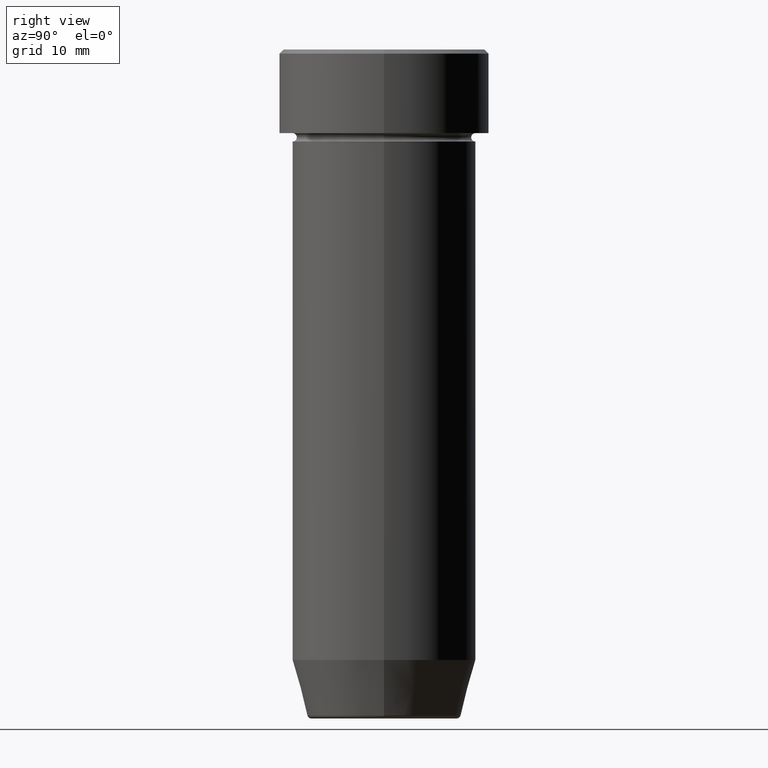
[diagram: clean part render]
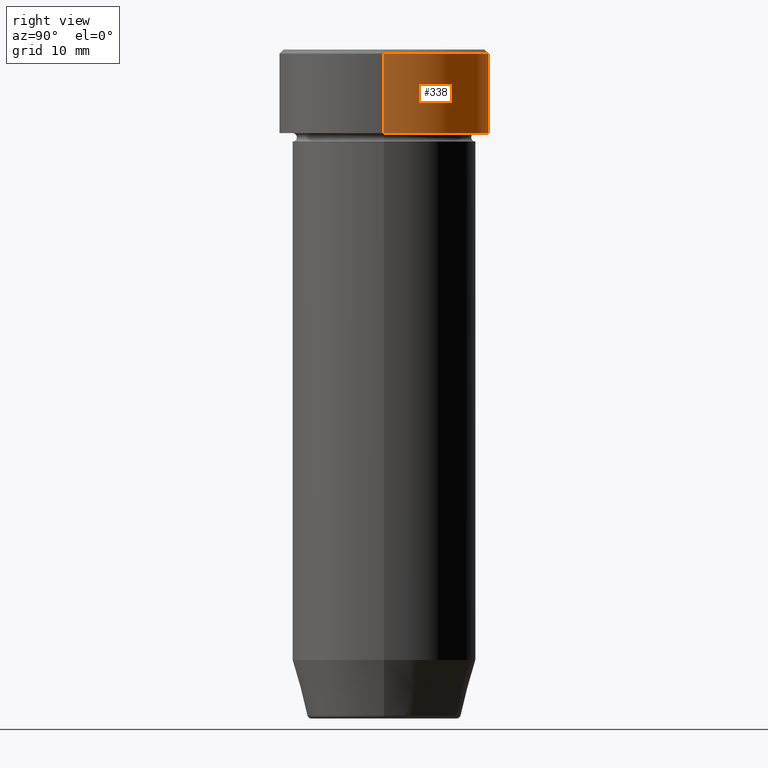
[diagram: same view with one face highlighted and labeled with its STEP entity id]
A machine part, right view. The second image highlights one B-rep face of the part: STEP entity #338.
In plain terms, the highlighted cylindrical surface (partial cylindrical patch) has radius 12.5 mm, axis along (-0, -0, 1).
Its self-contained STEP definition (entity closure, byte-faithful):
#4 = VERTEX_POINT ( 'NONE', #120 ) ;
#15 = CARTESIAN_POINT ( 'NONE',  ( 0.000000000000000000, 0.000000000000000000, -10.00000000000000000 ) ) ;
#18 = FACE_OUTER_BOUND ( 'NONE', #419, .T. ) ;
#53 = LINE ( 'NONE', #129, #532 ) ;
#89 = DIRECTION ( 'NONE',  ( -0.000000000000000000, -0.000000000000000000, 1.000000000000000000 ) ) ;
#100 = LINE ( 'NONE', #479, #133 ) ;
#120 = CARTESIAN_POINT ( 'NONE',  ( 12.50000000000000000, 0.000000000000000000, -0.4999999999999988343 ) ) ;
#121 = CARTESIAN_POINT ( 'NONE',  ( 12.50000000000000000, 0.000000000000000000, -10.00000000000000000 ) ) ;
#128 = VERTEX_POINT ( 'NONE', #135 ) ;
#129 = CARTESIAN_POINT ( 'NONE',  ( -12.50000000000000000, 1.530808498934191521E-15, 0.000000000000000000 ) ) ;
#133 = VECTOR ( 'NONE', #227, 1000.000000000000000 ) ;
#134 = ORIENTED_EDGE ( 'NONE', *, *, #137, .T. ) ;
#135 = CARTESIAN_POINT ( 'NONE',  ( -12.50000000000000000, 1.530808498934191521E-15, -0.4999999999999988343 ) ) ;
#137 = EDGE_CURVE ( 'NONE', #445, #426, #177, .T. ) ;
#145 = CARTESIAN_POINT ( 'NONE',  ( 0.000000000000000000, 0.000000000000000000, -0.4999999999999988343 ) ) ;
#148 = CARTESIAN_POINT ( 'NONE',  ( -12.50000000000000000, 1.530808498934191521E-15, -10.00000000000000000 ) ) ;
#172 = EDGE_CURVE ( 'NONE', #128, #4, #208, .T. ) ;
#177 = CIRCLE ( 'NONE', #252, 12.50000000000000000 ) ;
#178 = EDGE_CURVE ( 'NONE', #445, #4, #100, .T. ) ;
#198 = CARTESIAN_POINT ( 'NONE',  ( 0.000000000000000000, 0.000000000000000000, 0.000000000000000000 ) ) ;
#208 = CIRCLE ( 'NONE', #528, 12.50000000000000000 ) ;
#227 = DIRECTION ( 'NONE',  ( -0.000000000000000000, -0.000000000000000000, 1.000000000000000000 ) ) ;
#252 = AXIS2_PLACEMENT_3D ( 'NONE', #15, #89, #379 ) ;
#323 = AXIS2_PLACEMENT_3D ( 'NONE', #198, #480, #388 ) ;
#337 = DIRECTION ( 'NONE',  ( 0.000000000000000000, 0.000000000000000000, -1.000000000000000000 ) ) ;
#338 = ADVANCED_FACE ( 'NONE', ( #18 ), #340, .T. ) ;
#340 = CYLINDRICAL_SURFACE ( 'NONE', #323, 12.50000000000000000 ) ;
#379 = DIRECTION ( 'NONE',  ( 1.000000000000000000, 0.000000000000000000, 0.000000000000000000 ) ) ;
#388 = DIRECTION ( 'NONE',  ( 1.000000000000000000, 0.000000000000000000, 0.000000000000000000 ) ) ;
#403 = ORIENTED_EDGE ( 'NONE', *, *, #172, .T. ) ;
#419 = EDGE_LOOP ( 'NONE', ( #134, #461, #403, #513 ) ) ;
#426 = VERTEX_POINT ( 'NONE', #148 ) ;
#445 = VERTEX_POINT ( 'NONE', #121 ) ;
#461 = ORIENTED_EDGE ( 'NONE', *, *, #486, .T. ) ;
#479 = CARTESIAN_POINT ( 'NONE',  ( 12.50000000000000000, 0.000000000000000000, 0.000000000000000000 ) ) ;
#480 = DIRECTION ( 'NONE',  ( -0.000000000000000000, -0.000000000000000000, 1.000000000000000000 ) ) ;
#486 = EDGE_CURVE ( 'NONE', #426, #128, #53, .T. ) ;
#513 = ORIENTED_EDGE ( 'NONE', *, *, #178, .F. ) ;
#519 = DIRECTION ( 'NONE',  ( 1.000000000000000000, 0.000000000000000000, 0.000000000000000000 ) ) ;
#528 = AXIS2_PLACEMENT_3D ( 'NONE', #145, #337, #519 ) ;
#532 = VECTOR ( 'NONE', #551, 1000.000000000000000 ) ;
#551 = DIRECTION ( 'NONE',  ( -0.000000000000000000, -0.000000000000000000, 1.000000000000000000 ) ) ;